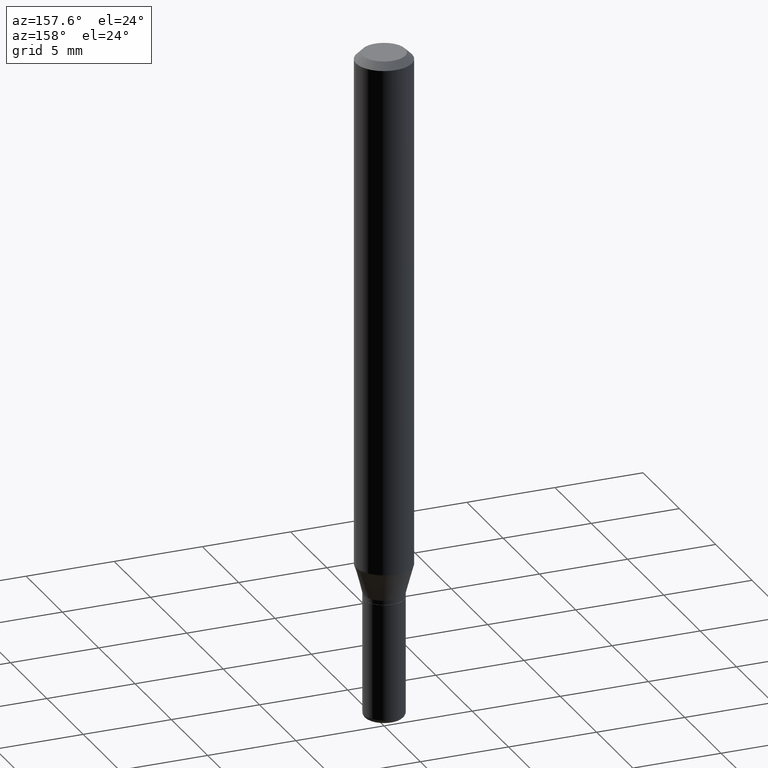
[diagram: clean part render]
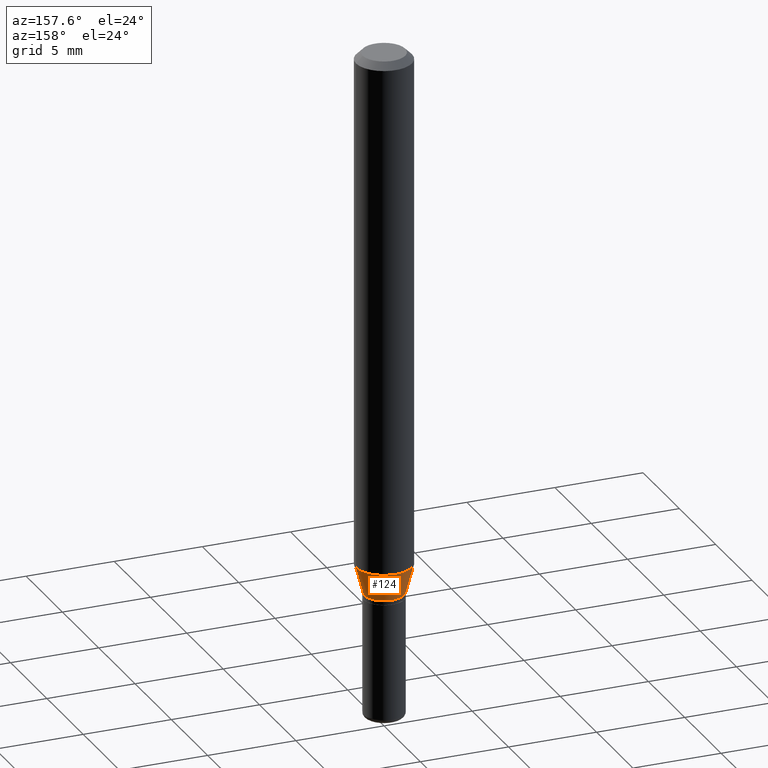
[diagram: same view with one face highlighted and labeled with its STEP entity id]
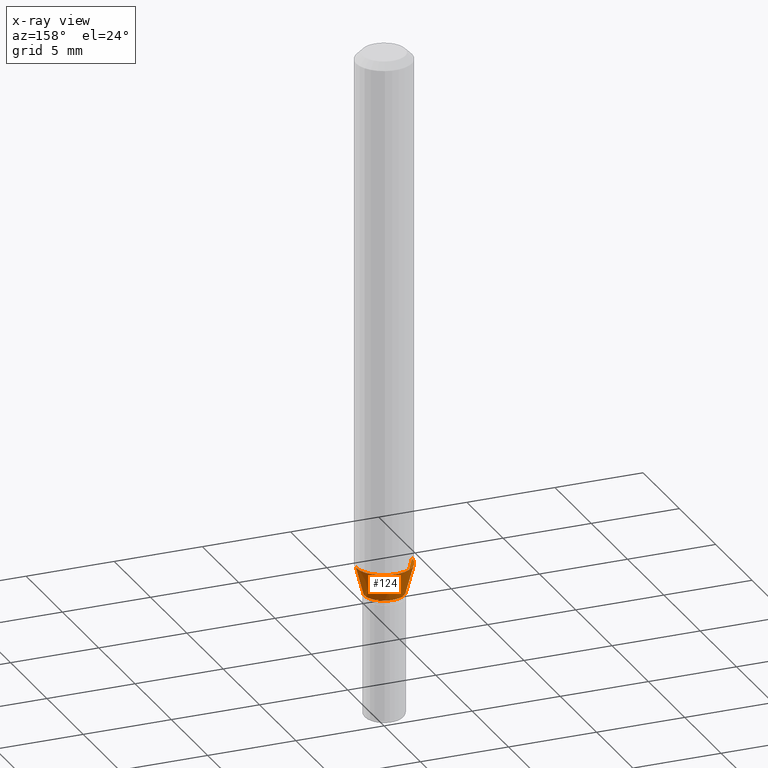
[diagram: x-ray of the same camera — body ghosted, the highlighted face saturated]
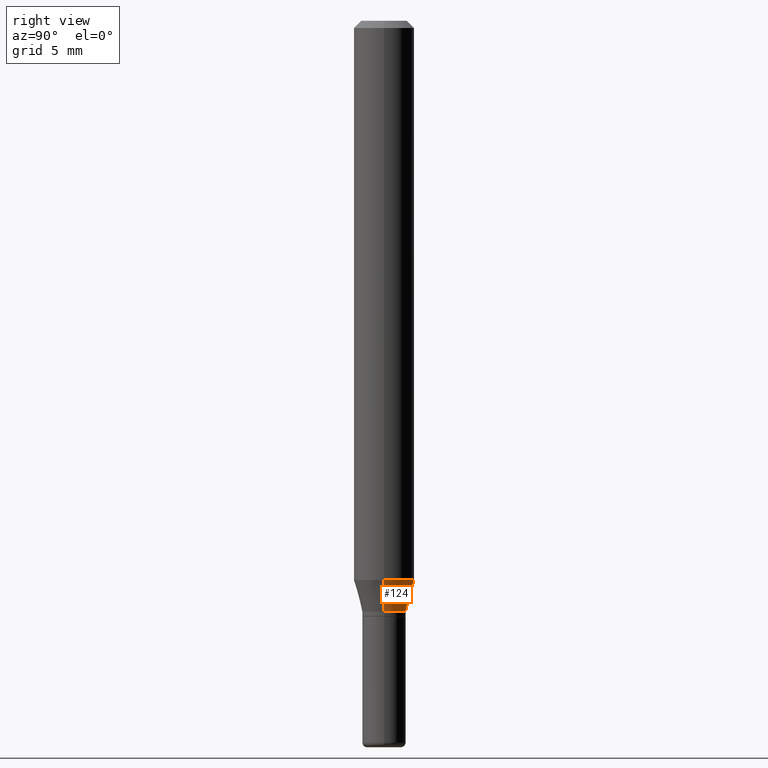
[diagram: same view with one face highlighted and labeled with its STEP entity id]
A machine part, auxiliary view. The second image highlights one B-rep face of the part: STEP entity #124.
The next image is the same camera in x-ray: the body ghosted, the highlighted face saturated — about 0% of this face is hidden behind the body in this view.
A second angle (right view) of the same face is appended — the face is thin or edge-on in the first view.
In plain terms, the highlighted conical surface has half-angle 15 deg.
Its self-contained STEP definition (entity closure, byte-faithful):
#10 = LINE ( 'NONE', #335, #376 ) ;
#25 = VECTOR ( 'NONE', #307, 39.37007874015748854 ) ;
#52 = VERTEX_POINT ( 'NONE', #235 ) ;
#62 = EDGE_CURVE ( 'NONE', #249, #334, #409, .T. ) ;
#65 = CONICAL_SURFACE ( 'NONE', #123, 0.04499999999999995670, 0.2617993877991494633 ) ;
#79 = DIRECTION ( 'NONE',  ( 1.000000000000000000, -6.982962677686275388E-15, 0.000000000000000000 ) ) ;
#83 = CARTESIAN_POINT ( 'NONE',  ( 0.04499999999999995670, -4.573840553884519999E-15, -1.220000000000000195 ) ) ;
#99 = AXIS2_PLACEMENT_3D ( 'NONE', #340, #362, #79 ) ;
#106 = DIRECTION ( 'NONE',  ( 1.000000000000000000, -6.982962677686275388E-15, 0.000000000000000000 ) ) ;
#123 = AXIS2_PLACEMENT_3D ( 'NONE', #366, #231, #106 ) ;
#124 = ADVANCED_FACE ( 'NONE', ( #328 ), #65, .T. ) ;
#143 = DIRECTION ( 'NONE',  ( 1.000000000000000000, -6.982962677686270655E-15, 0.000000000000000000 ) ) ;
#162 = EDGE_LOOP ( 'NONE', ( #252, #227, #413, #220 ) ) ;
#174 = VERTEX_POINT ( 'NONE', #353 ) ;
#220 = ORIENTED_EDGE ( 'NONE', *, *, #515, .F. ) ;
#227 = ORIENTED_EDGE ( 'NONE', *, *, #430, .T. ) ;
#231 = DIRECTION ( 'NONE',  ( -2.445468806185136597E-29, 3.491481338843145583E-15, 1.000000000000000000 ) ) ;
#235 = CARTESIAN_POINT ( 'NONE',  ( 0.06250000000000000000, -4.468010650114807348E-15, -1.154689110867544555 ) ) ;
#249 = VERTEX_POINT ( 'NONE', #83 ) ;
#252 = ORIENTED_EDGE ( 'NONE', *, *, #62, .T. ) ;
#265 = CIRCLE ( 'NONE', #311, 0.06250000000000000000 ) ;
#268 = DIRECTION ( 'NONE',  ( -0.2588190451025207395, 5.211531920934546309E-15, 0.9659258262890682012 ) ) ;
#272 = CARTESIAN_POINT ( 'NONE',  ( 2.823756201468231071E-29, -4.031575482759415678E-15, -1.154689110867544555 ) ) ;
#277 = CARTESIAN_POINT ( 'NONE',  ( 0.04499999999999995670, -4.573840553884519999E-15, -1.220000000000000195 ) ) ;
#307 = DIRECTION ( 'NONE',  ( 0.2588190451025207395, 1.565188264969626109E-15, 0.9659258262890682012 ) ) ;
#311 = AXIS2_PLACEMENT_3D ( 'NONE', #272, #350, #143 ) ;
#326 = CARTESIAN_POINT ( 'NONE',  ( -0.04499999999999995670, -3.763674637602973398E-15, -1.220000000000000195 ) ) ;
#328 = FACE_OUTER_BOUND ( 'NONE', #162, .T. ) ;
#334 = VERTEX_POINT ( 'NONE', #326 ) ;
#335 = CARTESIAN_POINT ( 'NONE',  ( -0.04499999999999995670, -3.939863002296592945E-15, -1.220000000000000195 ) ) ;
#340 = CARTESIAN_POINT ( 'NONE',  ( 2.983471943545866670E-29, -4.259607233388637524E-15, -1.220000000000000195 ) ) ;
#350 = DIRECTION ( 'NONE',  ( -2.445468806185136597E-29, 3.491481338843145583E-15, 1.000000000000000000 ) ) ;
#353 = CARTESIAN_POINT ( 'NONE',  ( -0.06250000000000000000, -3.587486272909353851E-15, -1.154689110867544555 ) ) ;
#362 = DIRECTION ( 'NONE',  ( -2.445468806185136597E-29, 3.491481338843145583E-15, 1.000000000000000000 ) ) ;
#366 = CARTESIAN_POINT ( 'NONE',  ( 2.983471943545866670E-29, -4.259607233388637524E-15, -1.220000000000000195 ) ) ;
#376 = VECTOR ( 'NONE', #268, 39.37007874015748854 ) ;
#381 = LINE ( 'NONE', #277, #25 ) ;
#409 = CIRCLE ( 'NONE', #99, 0.04499999999999995670 ) ;
#413 = ORIENTED_EDGE ( 'NONE', *, *, #492, .F. ) ;
#430 = EDGE_CURVE ( 'NONE', #334, #174, #10, .T. ) ;
#492 = EDGE_CURVE ( 'NONE', #52, #174, #265, .T. ) ;
#515 = EDGE_CURVE ( 'NONE', #249, #52, #381, .T. ) ;